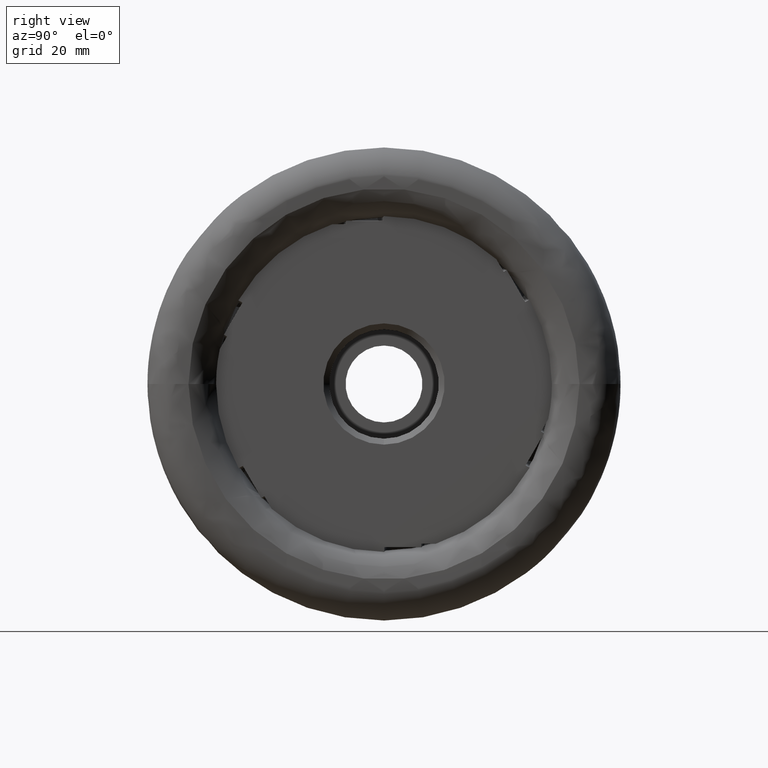
[diagram: clean part render]
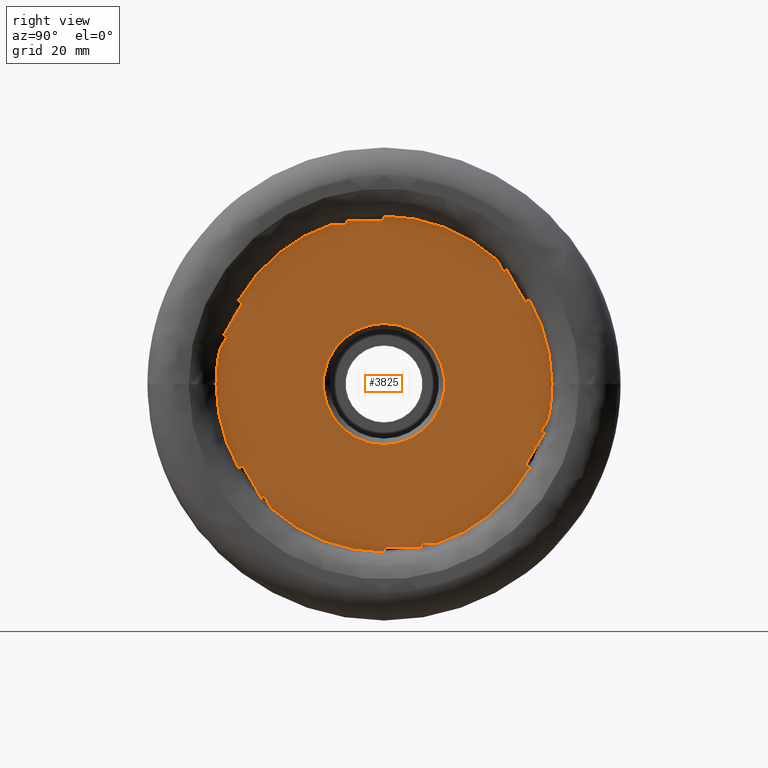
[diagram: same view with one face highlighted and labeled with its STEP entity id]
A machine part, right view. The second image highlights one B-rep face of the part: STEP entity #3825.
In plain terms, the highlighted planar face has unit normal (1, 0, -0).
Its self-contained STEP definition (entity closure, byte-faithful):
#2 = DIRECTION ( 'NONE',  ( -1.000000000000000000, 0.0000000000000000000, 0.0000000000000000000 ) ) ;
#32 = DIRECTION ( 'NONE',  ( 0.0000000000000000000, 0.8660254037844363800, -0.5000000000000040000 ) ) ;
#103 = LINE ( 'NONE', #4380, #709 ) ;
#120 = ORIENTED_EDGE ( 'NONE', *, *, #8787, .F. ) ;
#207 = CARTESIAN_POINT ( 'NONE',  ( -2.700000000000001500, 30.38352382057470900, -1.374193029785688800 ) ) ;
#221 = DIRECTION ( 'NONE',  ( 0.0000000000000000000, 0.4999999999999980600, -0.8660254037844397100 ) ) ;
#256 = VECTOR ( 'NONE', #6610, 1000.000000000000000 ) ;
#274 = CARTESIAN_POINT ( 'NONE',  ( -2.700000000000002000, -27.06041684123001900, 8.329983156997171200 ) ) ;
#332 = LINE ( 'NONE', #207, #2664 ) ;
#340 = LINE ( 'NONE', #2969, #9128 ) ;
#377 = EDGE_CURVE ( 'Kante19', #5934, #2457, #8398, .T. ) ;
#432 = LINE ( 'NONE', #5386, #7874 ) ;
#493 = VERTEX_POINT ( 'NONE', #4343 ) ;
#506 = CARTESIAN_POINT ( 'NONE',  ( -2.700000000000001500, -8.761760114829643300, 27.00000000000006400 ) ) ;
#525 = DIRECTION ( 'NONE',  ( 0.0000000000000000000, 0.8660254037844398200, 0.4999999999999979500 ) ) ;
#566 = CARTESIAN_POINT ( 'NONE',  ( -2.700000000000001500, 28.00335167357894800, 0.0000000000000000000 ) ) ;
#574 = LINE ( 'NONE', #9811, #3875 ) ;
#603 = FACE_BOUND ( 'NONE', #792, .T. ) ;
#610 = EDGE_CURVE ( 'NONE', #5075, #4155, #838, .T. ) ;
#611 = CARTESIAN_POINT ( 'NONE',  ( -2.699999999999999300, 6.316231393559090400, -27.60000000000000100 ) ) ;
#652 = VERTEX_POINT ( 'NONE', #4663 ) ;
#670 = ORIENTED_EDGE ( 'NONE', *, *, #8128, .T. ) ;
#704 = VERTEX_POINT ( 'NONE', #7034 ) ;
#709 = VECTOR ( 'NONE', #2981, 1000.000000000000000 ) ;
#725 = CARTESIAN_POINT ( 'NONE',  ( -2.700000000000001500, 24.61065322461657300, -14.14511181177094000 ) ) ;
#727 = CARTESIAN_POINT ( 'NONE',  ( -2.700000000000001500, 0.05530044394365732400, -28.38600680213281900 ) ) ;
#742 = LINE ( 'NONE', #1110, #7202 ) ;
#755 = CARTESIAN_POINT ( 'NONE',  ( -2.700000000000001500, 20.97486353321226800, -12.17369855951025100 ) ) ;
#792 = EDGE_LOOP ( 'NONE', ( #9293, #1400 ) ) ;
#838 = LINE ( 'NONE', #10102, #3182 ) ;
#959 = EDGE_CURVE ( 'NONE', #7001, #704, #2674, .T. ) ;
#976 = CARTESIAN_POINT ( 'NONE',  ( -2.699999999999997500, 0.0000000000000000000, 0.0000000000000000000 ) ) ;
#1110 = CARTESIAN_POINT ( 'NONE',  ( -2.700000000000001500, 30.90313906284515300, 1.674193029785487900 ) ) ;
#1156 = EDGE_CURVE ( 'NONE', #5562, #9116, #340, .T. ) ;
#1170 = DIRECTION ( 'NONE',  ( 1.000000000000000000, -0.0000000000000000000, -0.0000000000000000000 ) ) ;
#1178 = CARTESIAN_POINT ( 'NONE',  ( -2.700000000000001500, 17.84439805840452900, -17.59582381321743200 ) ) ;
#1207 = AXIS2_PLACEMENT_3D ( 'NONE', #5783, #1770, #2687 ) ;
#1268 = EDGE_CURVE ( 'NONE', #6971, #6039, #2806, .T. ) ;
#1340 = CARTESIAN_POINT ( 'NONE',  ( -2.700000000000001500, -0.05530044394345910700, 28.38600680213281900 ) ) ;
#1344 = CARTESIAN_POINT ( 'NONE',  ( -2.699999999999997500, 0.0000000000000000000, 0.0000000000000000000 ) ) ;
#1400 = ORIENTED_EDGE ( 'NONE', *, *, #8464, .F. ) ;
#1441 = FACE_OUTER_BOUND ( 'NONE', #2447, .T. ) ;
#1512 = ORIENTED_EDGE ( 'NONE', *, *, #4215, .T. ) ;
#1546 = VERTEX_POINT ( 'NONE', #274 ) ;
#1549 = LINE ( 'NONE', #5168, #7535 ) ;
#1594 = DIRECTION ( 'NONE',  ( -0.0000000000000000000, -0.8660254037844432600, -0.4999999999999919500 ) ) ;
#1757 = DIRECTION ( 'NONE',  ( 0.0000000000000000000, 0.8660254037844432600, 0.4999999999999919500 ) ) ;
#1770 = DIRECTION ( 'NONE',  ( -1.000000000000000000, 0.0000000000000000000, 0.0000000000000000000 ) ) ;
#1788 = LINE ( 'NONE', #7781, #9883 ) ;
#1815 = CARTESIAN_POINT ( 'NONE',  ( -2.700000000000001500, -27.76356595959473600, 5.912093158692247400 ) ) ;
#1836 = ORIENTED_EDGE ( 'NONE', *, *, #5704, .F. ) ;
#1858 = CIRCLE ( 'NONE', #5965, 10.25000000000000200 ) ;
#1887 = VERTEX_POINT ( 'NONE', #9478 ) ;
#1899 = VECTOR ( 'NONE', #8527, 1000.000000000000100 ) ;
#2038 = EDGE_CURVE ( 'NONE', #3212, #7911, #8257, .T. ) ;
#2082 = CARTESIAN_POINT ( 'NONE',  ( -2.700000000000001500, -16.90146322605560100, 25.92580697021460200 ) ) ;
#2125 = ORIENTED_EDGE ( 'NONE', *, *, #1156, .T. ) ;
#2156 = VECTOR ( 'NONE', #9557, 1000.000000000000200 ) ;
#2195 = ORIENTED_EDGE ( 'NONE', *, *, #6564, .F. ) ;
#2197 = CARTESIAN_POINT ( 'NONE',  ( -2.699999999999997500, 0.0000000000000000000, 0.0000000000000000000 ) ) ;
#2208 = AXIS2_PLACEMENT_3D ( 'NONE', #2197, #3739, #9072 ) ;
#2216 = ORIENTED_EDGE ( 'NONE', *, *, #2937, .F. ) ;
#2336 = VERTEX_POINT ( 'NONE', #9505 ) ;
#2447 = EDGE_LOOP ( 'NONE', ( #8943, #4617, #2195, #4302, #6287, #2703, #6200, #9683, #6791, #9418, #2125, #6246, #1512, #120, #9218, #670, #2216, #5066, #8182, #6673, #6910, #6170, #7211, #7319, #1836, #7737, #9958, #3800, #5165, #5944, #9364, #8540 ) ) ;
#2457 = VERTEX_POINT ( 'NONE', #2787 ) ;
#2497 = LINE ( 'NONE', #8451, #6994 ) ;
#2533 = AXIS2_PLACEMENT_3D ( 'NONE', #976, #9560, #6337 ) ;
#2664 = VECTOR ( 'NONE', #3482, 1000.000000000000000 ) ;
#2674 = CIRCLE ( 'NONE', #2208, 28.38606066909995800 ) ;
#2679 = EDGE_CURVE ( 'NONE', #3271, #10039, #6195, .T. ) ;
#2687 = DIRECTION ( 'NONE',  ( 0.0000000000000000000, 0.0000000000000000000, -1.000000000000000000 ) ) ;
#2703 = ORIENTED_EDGE ( 'NONE', *, *, #4080, .F. ) ;
#2738 = CARTESIAN_POINT ( 'NONE',  ( -2.700000000000002000, -26.54080159895935900, 8.029983156997166900 ) ) ;
#2787 = CARTESIAN_POINT ( 'NONE',  ( -2.700000000000000200, 1.255262969126037200E-015, 10.25000000000000200 ) ) ;
#2798 = DIRECTION ( 'NONE',  ( -1.000000000000000000, 0.0000000000000000000, 0.0000000000000000000 ) ) ;
#2806 = LINE ( 'NONE', #7690, #8385 ) ;
#2937 = EDGE_CURVE ( 'NONE', #652, #9760, #5682, .T. ) ;
#2969 = CARTESIAN_POINT ( 'NONE',  ( -2.700000000000001500, 30.38352382057448900, 1.374193029785495200 ) ) ;
#2981 = DIRECTION ( 'NONE',  ( 0.0000000000000000000, 0.8660254037844328200, -0.5000000000000101000 ) ) ;
#2993 = DIRECTION ( 'NONE',  ( 0.0000000000000000000, 0.0000000000000000000, -1.000000000000000000 ) ) ;
#2996 = CARTESIAN_POINT ( 'NONE',  ( -2.700000000000001100, -0.05530044394346433900, 27.60000000000000500 ) ) ;
#3039 = EDGE_CURVE ( 'NONE', #3212, #5935, #1788, .T. ) ;
#3078 = EDGE_CURVE ( 'NONE', #7001, #9447, #1549, .T. ) ;
#3153 = LINE ( 'NONE', #6240, #9481 ) ;
#3159 = CARTESIAN_POINT ( 'NONE',  ( -2.699999999999997500, 0.0000000000000000000, 0.0000000000000000000 ) ) ;
#3182 = VECTOR ( 'NONE', #6083, 1000.000000000000000 ) ;
#3212 = VERTEX_POINT ( 'NONE', #727 ) ;
#3230 = VECTOR ( 'NONE', #221, 1000.000000000000100 ) ;
#3271 = VERTEX_POINT ( 'NONE', #6242 ) ;
#3382 = EDGE_CURVE ( 'NONE', #6130, #1887, #9736, .T. ) ;
#3393 = EDGE_CURVE ( 'NONE', #3783, #4456, #332, .T. ) ;
#3408 = CARTESIAN_POINT ( 'NONE',  ( -2.700000000000001500, 27.76356595959469300, -5.912093158692429500 ) ) ;
#3482 = DIRECTION ( 'NONE',  ( 0.0000000000000000000, 0.5000000000000101000, 0.8660254037844328200 ) ) ;
#3512 = CARTESIAN_POINT ( 'NONE',  ( -2.700000000000000200, 0.0000000000000000000, 0.0000000000000000000 ) ) ;
#3533 = VERTEX_POINT ( 'NONE', #5877 ) ;
#3578 = AXIS2_PLACEMENT_3D ( 'NONE', #566, #7623, #4402 ) ;
#3588 = VECTOR ( 'NONE', #5064, 1000.000000000000000 ) ;
#3655 = AXIS2_PLACEMENT_3D ( 'NONE', #3512, #1170, #6571 ) ;
#3718 = VECTOR ( 'NONE', #32, 1000.000000000000100 ) ;
#3739 = DIRECTION ( 'NONE',  ( -1.000000000000000000, 0.0000000000000000000, 0.0000000000000000000 ) ) ;
#3783 = VERTEX_POINT ( 'NONE', #4261 ) ;
#3800 = ORIENTED_EDGE ( 'NONE', *, *, #2038, .F. ) ;
#3805 = LINE ( 'NONE', #1178, #4507 ) ;
#3818 = VERTEX_POINT ( 'NONE', #1340 ) ;
#3825 = ADVANCED_FACE ( 'NONE', ( #603, #1441 ), #5218, .T. ) ;
#3875 = VECTOR ( 'NONE', #5090, 1000.000000000000000 ) ;
#3883 = CARTESIAN_POINT ( 'NONE',  ( -2.700000000000001500, -24.55535278067311800, -14.24089499036212600 ) ) ;
#3885 = VECTOR ( 'NONE', #8469, 1000.000000000000000 ) ;
#3886 = VERTEX_POINT ( 'NONE', #2996 ) ;
#3903 = DIRECTION ( 'NONE',  ( -0.0000000000000000000, -0.5000000000000040000, -0.8660254037844363800 ) ) ;
#3907 = CARTESIAN_POINT ( 'NONE',  ( -2.700000000000001500, -19.00180584476498400, -21.08790684130785600 ) ) ;
#4012 = DIRECTION ( 'NONE',  ( 0.0000000000000000000, 0.0000000000000000000, -1.000000000000000000 ) ) ;
#4080 = EDGE_CURVE ( 'NONE', #10039, #4456, #4124, .T. ) ;
#4124 = CIRCLE ( 'NONE', #1207, 28.38606066909995800 ) ;
#4144 = CARTESIAN_POINT ( 'NONE',  ( -2.700000000000001100, 0.05530044394365710900, -27.60000000000000500 ) ) ;
#4155 = VERTEX_POINT ( 'NONE', #611 ) ;
#4159 = EDGE_CURVE ( 'NONE', #3783, #5832, #103, .T. ) ;
#4177 = VERTEX_POINT ( 'NONE', #8541 ) ;
#4215 = EDGE_CURVE ( 'NONE', #3818, #3886, #5572, .T. ) ;
#4261 = CARTESIAN_POINT ( 'NONE',  ( -2.700000000000002000, 26.54080159895929800, -8.029983156997353400 ) ) ;
#4302 = ORIENTED_EDGE ( 'NONE', *, *, #4159, .F. ) ;
#4332 = CIRCLE ( 'NONE', #6765, 28.38606066909995800 ) ;
#4340 = DIRECTION ( 'NONE',  ( 0.0000000000000000000, 0.0000000000000000000, -1.000000000000000000 ) ) ;
#4343 = CARTESIAN_POINT ( 'NONE',  ( -2.700000000000001100, -23.92995136642228000, 13.75210841070435000 ) ) ;
#4380 = CARTESIAN_POINT ( 'NONE',  ( -2.700000000000001500, 24.16062945196354100, -6.655790127211664900 ) ) ;
#4402 = DIRECTION ( 'NONE',  ( -0.0000000000000000000, 0.0000000000000000000, -1.000000000000000000 ) ) ;
#4456 = VERTEX_POINT ( 'NONE', #3408 ) ;
#4507 = VECTOR ( 'NONE', #8232, 999.9999999999998900 ) ;
#4602 = AXIS2_PLACEMENT_3D ( 'NONE', #1344, #2798, #4340 ) ;
#4617 = ORIENTED_EDGE ( 'NONE', *, *, #5086, .T. ) ;
#4620 = DIRECTION ( 'NONE',  ( 0.0000000000000000000, 0.0000000000000000000, -1.000000000000000000 ) ) ;
#4631 = CARTESIAN_POINT ( 'NONE',  ( -2.700000000000001100, 27.06041684122995900, -8.329983156997359500 ) ) ;
#4663 = CARTESIAN_POINT ( 'NONE',  ( -2.700000000000001500, -24.61065322461666200, 14.14511181177076400 ) ) ;
#4702 = VECTOR ( 'NONE', #8750, 1000.000000000000000 ) ;
#4872 = LINE ( 'NONE', #8514, #7702 ) ;
#5064 = DIRECTION ( 'NONE',  ( 0.0000000000000000000, 1.000000000000000000, -7.031248046778250600E-015 ) ) ;
#5066 = ORIENTED_EDGE ( 'NONE', *, *, #8461, .T. ) ;
#5075 = VERTEX_POINT ( 'NONE', #8815 ) ;
#5086 = EDGE_CURVE ( 'NONE', #8503, #7714, #8867, .T. ) ;
#5090 = DIRECTION ( 'NONE',  ( 0.0000000000000000000, -1.000000000000000000, 4.828536909198326900E-017 ) ) ;
#5111 = AXIS2_PLACEMENT_3D ( 'NONE', #3159, #2, #9284 ) ;
#5165 = ORIENTED_EDGE ( 'NONE', *, *, #3039, .T. ) ;
#5168 = CARTESIAN_POINT ( 'NONE',  ( -2.700000000000001500, 21.03016397715609600, 12.07791538091862500 ) ) ;
#5218 = PLANE ( 'NONE',  #3578 ) ;
#5253 = AXIS2_PLACEMENT_3D ( 'NONE', #10027, #9110, #2993 ) ;
#5284 = EDGE_CURVE ( 'NONE', #4155, #5935, #574, .T. ) ;
#5302 = LINE ( 'NONE', #6891, #1899 ) ;
#5370 = CARTESIAN_POINT ( 'NONE',  ( -2.700000000000000200, 0.0000000000000000000, 0.0000000000000000000 ) ) ;
#5384 = LINE ( 'NONE', #9640, #3588 ) ;
#5386 = CARTESIAN_POINT ( 'NONE',  ( -2.700000000000001500, 30.90313906284536900, -1.674193029785696000 ) ) ;
#5390 = VECTOR ( 'NONE', #5681, 1000.000000000000000 ) ;
#5443 = CARTESIAN_POINT ( 'NONE',  ( -2.700000000000001500, 19.00180584476513000, 21.08790684130772100 ) ) ;
#5448 = EDGE_CURVE ( 'NONE', #3271, #4177, #3153, .T. ) ;
#5457 = CARTESIAN_POINT ( 'NONE',  ( -2.699999999999997500, 0.0000000000000000000, 0.0000000000000000000 ) ) ;
#5555 = DIRECTION ( 'NONE',  ( 0.0000000000000000000, -0.5000000000000102100, -0.8660254037844327100 ) ) ;
#5562 = VERTEX_POINT ( 'NONE', #9416 ) ;
#5572 = LINE ( 'NONE', #9368, #3885 ) ;
#5640 = CARTESIAN_POINT ( 'NONE',  ( -2.700000000000001500, -6.316231393559090400, 2.396523676715785200E-013 ) ) ;
#5681 = DIRECTION ( 'NONE',  ( 0.0000000000000000000, -1.000000000000000000, 6.982962677686266700E-015 ) ) ;
#5682 = CIRCLE ( 'NONE', #5253, 28.38606066909995800 ) ;
#5704 = EDGE_CURVE ( 'NONE', #7973, #9447, #5302, .T. ) ;
#5758 = EDGE_CURVE ( 'NONE', #704, #6039, #4332, .T. ) ;
#5783 = CARTESIAN_POINT ( 'NONE',  ( -2.699999999999997500, 0.0000000000000000000, 0.0000000000000000000 ) ) ;
#5832 = VERTEX_POINT ( 'NONE', #4631 ) ;
#5877 = CARTESIAN_POINT ( 'NONE',  ( -2.700000000000000200, 20.74418544767115000, 19.27001684300276500 ) ) ;
#5934 = VERTEX_POINT ( 'NONE', #8804 ) ;
#5935 = VERTEX_POINT ( 'NONE', #4144 ) ;
#5944 = ORIENTED_EDGE ( 'NONE', *, *, #5284, .F. ) ;
#5965 = AXIS2_PLACEMENT_3D ( 'NONE', #5370, #7739, #4620 ) ;
#6039 = VERTEX_POINT ( 'NONE', #1815 ) ;
#6083 = DIRECTION ( 'NONE',  ( 0.0000000000000000000, 0.0000000000000000000, -1.000000000000000000 ) ) ;
#6130 = VERTEX_POINT ( 'NONE', #6523 ) ;
#6160 = CIRCLE ( 'NONE', #2533, 28.38606066909995800 ) ;
#6170 = ORIENTED_EDGE ( 'NONE', *, *, #5758, .F. ) ;
#6195 = CIRCLE ( 'NONE', #5111, 28.38606066909995800 ) ;
#6200 = ORIENTED_EDGE ( 'NONE', *, *, #2679, .F. ) ;
#6230 = AXIS2_PLACEMENT_3D ( 'NONE', #6771, #9081, #6742 ) ;
#6233 = DIRECTION ( 'NONE',  ( 0.0000000000000000000, 1.000000000000000000, 0.0000000000000000000 ) ) ;
#6240 = CARTESIAN_POINT ( 'NONE',  ( -2.700000000000001500, 20.97486353321260900, 12.17369855951005800 ) ) ;
#6242 = CARTESIAN_POINT ( 'NONE',  ( -2.700000000000001500, 24.55535278067321800, 14.24089499036195700 ) ) ;
#6246 = ORIENTED_EDGE ( 'NONE', *, *, #6729, .F. ) ;
#6261 = LINE ( 'NONE', #755, #3718 ) ;
#6287 = ORIENTED_EDGE ( 'NONE', *, *, #3393, .T. ) ;
#6337 = DIRECTION ( 'NONE',  ( 0.0000000000000000000, 1.776356839400250500E-015, -1.000000000000000000 ) ) ;
#6523 = CARTESIAN_POINT ( 'NONE',  ( -2.700000000000003700, -6.316231393558903000, 27.00000000000005000 ) ) ;
#6564 = EDGE_CURVE ( 'NONE', #5832, #7714, #432, .T. ) ;
#6571 = DIRECTION ( 'NONE',  ( 0.0000000000000000000, 0.0000000000000000000, -1.000000000000000000 ) ) ;
#6610 = DIRECTION ( 'NONE',  ( 0.0000000000000000000, 0.5000000000000041100, 0.8660254037844363800 ) ) ;
#6673 = ORIENTED_EDGE ( 'NONE', *, *, #10129, .F. ) ;
#6718 = CARTESIAN_POINT ( 'NONE',  ( -2.700000000000001100, -23.87465092247871500, -13.84789158929571000 ) ) ;
#6729 = EDGE_CURVE ( 'NONE', #3818, #9116, #6160, .T. ) ;
#6742 = DIRECTION ( 'NONE',  ( 0.0000000000000000000, 0.0000000000000000000, -1.000000000000000000 ) ) ;
#6765 = AXIS2_PLACEMENT_3D ( 'NONE', #5457, #8596, #4012 ) ;
#6766 = EDGE_CURVE ( 'NONE', #5562, #3533, #9219, .T. ) ;
#6771 = CARTESIAN_POINT ( 'NONE',  ( -2.699999999999997500, 0.0000000000000000000, 0.0000000000000000000 ) ) ;
#6791 = ORIENTED_EDGE ( 'NONE', *, *, #9313, .F. ) ;
#6891 = CARTESIAN_POINT ( 'NONE',  ( -2.700000000000001500, -16.90146322605586300, -25.92580697021433200 ) ) ;
#6910 = ORIENTED_EDGE ( 'NONE', *, *, #1268, .T. ) ;
#6971 = VERTEX_POINT ( 'NONE', #2738 ) ;
#6994 = VECTOR ( 'NONE', #9246, 1000.000000000000100 ) ;
#7001 = VERTEX_POINT ( 'NONE', #3883 ) ;
#7004 = VECTOR ( 'NONE', #1757, 1000.000000000000000 ) ;
#7034 = CARTESIAN_POINT ( 'NONE',  ( -2.699999999999997500, -28.38606066909995800, 3.476289833882390000E-015 ) ) ;
#7202 = VECTOR ( 'NONE', #8955, 1000.000000000000100 ) ;
#7211 = ORIENTED_EDGE ( 'NONE', *, *, #959, .F. ) ;
#7277 = CARTESIAN_POINT ( 'NONE',  ( -2.700000000000001500, 21.03016397715575500, -12.07791538091882100 ) ) ;
#7319 = ORIENTED_EDGE ( 'NONE', *, *, #3078, .T. ) ;
#7327 = EDGE_CURVE ( 'NONE', #8503, #2336, #7861, .T. ) ;
#7535 = VECTOR ( 'NONE', #525, 1000.000000000000000 ) ;
#7609 = LINE ( 'NONE', #8074, #5390 ) ;
#7623 = DIRECTION ( 'NONE',  ( 1.000000000000000000, 0.0000000000000000000, -0.0000000000000000000 ) ) ;
#7690 = CARTESIAN_POINT ( 'NONE',  ( -2.700000000000001500, -16.38184798378494400, 25.62580697021460100 ) ) ;
#7702 = VECTOR ( 'NONE', #6233, 1000.000000000000000 ) ;
#7714 = VERTEX_POINT ( 'NONE', #8372 ) ;
#7737 = ORIENTED_EDGE ( 'NONE', *, *, #8409, .F. ) ;
#7739 = DIRECTION ( 'NONE',  ( 1.000000000000000000, -0.0000000000000000000, -0.0000000000000000000 ) ) ;
#7781 = CARTESIAN_POINT ( 'NONE',  ( -2.700000000000001500, 0.05530044394365732400, 0.0000000000000000000 ) ) ;
#7861 = CIRCLE ( 'NONE', #6230, 28.38606066909995800 ) ;
#7874 = VECTOR ( 'NONE', #5555, 1000.000000000000100 ) ;
#7911 = VERTEX_POINT ( 'NONE', #3907 ) ;
#7973 = VERTEX_POINT ( 'NONE', #8559 ) ;
#8074 = CARTESIAN_POINT ( 'NONE',  ( -2.700000000000001500, 28.00335167357913600, 26.99999999999980800 ) ) ;
#8128 = EDGE_CURVE ( 'NONE', #6130, #9760, #7609, .T. ) ;
#8182 = ORIENTED_EDGE ( 'NONE', *, *, #10038, .F. ) ;
#8232 = DIRECTION ( 'NONE',  ( 0.0000000000000000000, -0.8660254037844363800, 0.5000000000000040000 ) ) ;
#8257 = CIRCLE ( 'NONE', #4602, 28.38606066909995800 ) ;
#8372 = CARTESIAN_POINT ( 'NONE',  ( -2.700000000000001100, 23.92995136642218100, -13.75210841070451700 ) ) ;
#8385 = VECTOR ( 'NONE', #3903, 999.9999999999998900 ) ;
#8398 = CIRCLE ( 'NONE', #3655, 10.25000000000000200 ) ;
#8409 = EDGE_CURVE ( 'NONE', #8987, #7973, #2497, .T. ) ;
#8451 = CARTESIAN_POINT ( 'NONE',  ( -2.700000000000001500, 24.16062945196380300, 6.655790127211422400 ) ) ;
#8461 = EDGE_CURVE ( 'NONE', #652, #493, #6261, .T. ) ;
#8464 = EDGE_CURVE ( 'Kante19', #2457, #5934, #1858, .T. ) ;
#8469 = DIRECTION ( 'NONE',  ( -0.0000000000000000000, -6.982962677686267500E-015, -1.000000000000000000 ) ) ;
#8503 = VERTEX_POINT ( 'NONE', #725 ) ;
#8514 = CARTESIAN_POINT ( 'NONE',  ( -2.700000000000001500, 28.00335167357894800, -27.00000000000000400 ) ) ;
#8526 = CARTESIAN_POINT ( 'NONE',  ( -2.700000000000002800, -20.22457020540034700, -18.97001684300291300 ) ) ;
#8527 = DIRECTION ( 'NONE',  ( 0.0000000000000000000, -0.4999999999999978900, 0.8660254037844398200 ) ) ;
#8540 = ORIENTED_EDGE ( 'NONE', *, *, #9462, .T. ) ;
#8541 = CARTESIAN_POINT ( 'NONE',  ( -2.700000000000000200, 23.87465092247881100, 13.84789158929554500 ) ) ;
#8559 = CARTESIAN_POINT ( 'NONE',  ( -2.700000000000000200, -20.74418544767100800, -19.27001684300291000 ) ) ;
#8596 = DIRECTION ( 'NONE',  ( -1.000000000000000000, 0.0000000000000000000, 0.0000000000000000000 ) ) ;
#8646 = CARTESIAN_POINT ( 'NONE',  ( -2.700000000000001500, 17.84439805840494500, 17.59582381321728000 ) ) ;
#8750 = DIRECTION ( 'NONE',  ( 0.0000000000000000000, 6.982962677686266700E-015, 1.000000000000000000 ) ) ;
#8763 = EDGE_CURVE ( 'NONE', #8987, #7911, #8808, .T. ) ;
#8787 = EDGE_CURVE ( 'NONE', #1887, #3886, #5384, .T. ) ;
#8804 = CARTESIAN_POINT ( 'NONE',  ( -2.700000000000000200, 0.0000000000000000000, -10.25000000000000200 ) ) ;
#8808 = LINE ( 'NONE', #9544, #3230 ) ;
#8815 = CARTESIAN_POINT ( 'NONE',  ( -2.700000000000002000, 6.316231393559091200, -27.00000000000000400 ) ) ;
#8867 = LINE ( 'NONE', #7277, #2156 ) ;
#8943 = ORIENTED_EDGE ( 'NONE', *, *, #7327, .F. ) ;
#8955 = DIRECTION ( 'NONE',  ( 0.0000000000000000000, 0.4999999999999919000, -0.8660254037844432600 ) ) ;
#8987 = VERTEX_POINT ( 'NONE', #8526 ) ;
#9072 = DIRECTION ( 'NONE',  ( 0.0000000000000000000, 0.0000000000000000000, -1.000000000000000000 ) ) ;
#9081 = DIRECTION ( 'NONE',  ( -1.000000000000000000, 0.0000000000000000000, 0.0000000000000000000 ) ) ;
#9110 = DIRECTION ( 'NONE',  ( -1.000000000000000000, 0.0000000000000000000, 0.0000000000000000000 ) ) ;
#9116 = VERTEX_POINT ( 'NONE', #5443 ) ;
#9128 = VECTOR ( 'NONE', #9993, 1000.000000000000000 ) ;
#9156 = LINE ( 'NONE', #2082, #256 ) ;
#9218 = ORIENTED_EDGE ( 'NONE', *, *, #3382, .F. ) ;
#9219 = LINE ( 'NONE', #8646, #7004 ) ;
#9246 = DIRECTION ( 'NONE',  ( 0.0000000000000000000, -0.8660254037844397100, -0.4999999999999979500 ) ) ;
#9284 = DIRECTION ( 'NONE',  ( 0.0000000000000000000, 0.0000000000000000000, -1.000000000000000000 ) ) ;
#9293 = ORIENTED_EDGE ( 'NONE', *, *, #377, .F. ) ;
#9313 = EDGE_CURVE ( 'NONE', #3533, #4177, #742, .T. ) ;
#9364 = ORIENTED_EDGE ( 'NONE', *, *, #610, .F. ) ;
#9368 = CARTESIAN_POINT ( 'NONE',  ( -2.700000000000001500, -0.05530044394365732400, 1.959325205228431000E-013 ) ) ;
#9416 = CARTESIAN_POINT ( 'NONE',  ( -2.700000000000001100, 20.22457020540047500, 18.97001684300277100 ) ) ;
#9418 = ORIENTED_EDGE ( 'NONE', *, *, #6766, .F. ) ;
#9447 = VERTEX_POINT ( 'NONE', #6718 ) ;
#9462 = EDGE_CURVE ( 'NONE', #5075, #2336, #4872, .T. ) ;
#9478 = CARTESIAN_POINT ( 'NONE',  ( -2.699999999999998400, -6.316231393558897600, 27.60000000000004800 ) ) ;
#9481 = VECTOR ( 'NONE', #1594, 1000.000000000000100 ) ;
#9505 = CARTESIAN_POINT ( 'NONE',  ( -2.700000000000001500, 8.761760114829833400, -27.00000000000000400 ) ) ;
#9544 = CARTESIAN_POINT ( 'NONE',  ( -2.700000000000001500, -16.38184798378520000, -25.62580697021434500 ) ) ;
#9557 = DIRECTION ( 'NONE',  ( 0.0000000000000000000, -0.8660254037844327100, 0.5000000000000101000 ) ) ;
#9560 = DIRECTION ( 'NONE',  ( -1.000000000000000000, 0.0000000000000000000, 0.0000000000000000000 ) ) ;
#9638 = DIRECTION ( 'NONE',  ( 0.0000000000000000000, 0.0000000000000000000, 1.000000000000000000 ) ) ;
#9640 = CARTESIAN_POINT ( 'NONE',  ( -2.700000000000001500, 28.00335167357914300, 27.59999999999981000 ) ) ;
#9683 = ORIENTED_EDGE ( 'NONE', *, *, #5448, .T. ) ;
#9736 = LINE ( 'NONE', #5640, #4702 ) ;
#9760 = VERTEX_POINT ( 'NONE', #506 ) ;
#9811 = CARTESIAN_POINT ( 'NONE',  ( -2.700000000000001500, 28.00335167357894800, -27.60000000000000500 ) ) ;
#9876 = CARTESIAN_POINT ( 'NONE',  ( -2.699999999999997500, 28.38606066909995800, 0.0000000000000000000 ) ) ;
#9883 = VECTOR ( 'NONE', #9638, 1000.000000000000000 ) ;
#9958 = ORIENTED_EDGE ( 'NONE', *, *, #8763, .T. ) ;
#9993 = DIRECTION ( 'NONE',  ( 0.0000000000000000000, -0.4999999999999920100, 0.8660254037844432600 ) ) ;
#10027 = CARTESIAN_POINT ( 'NONE',  ( -2.699999999999997500, 0.0000000000000000000, 0.0000000000000000000 ) ) ;
#10038 = EDGE_CURVE ( 'NONE', #1546, #493, #9156, .T. ) ;
#10039 = VERTEX_POINT ( 'NONE', #9876 ) ;
#10102 = CARTESIAN_POINT ( 'NONE',  ( -2.700000000000001500, 6.316231393559086800, 0.0000000000000000000 ) ) ;
#10129 = EDGE_CURVE ( 'NONE', #6971, #1546, #3805, .T. ) ;